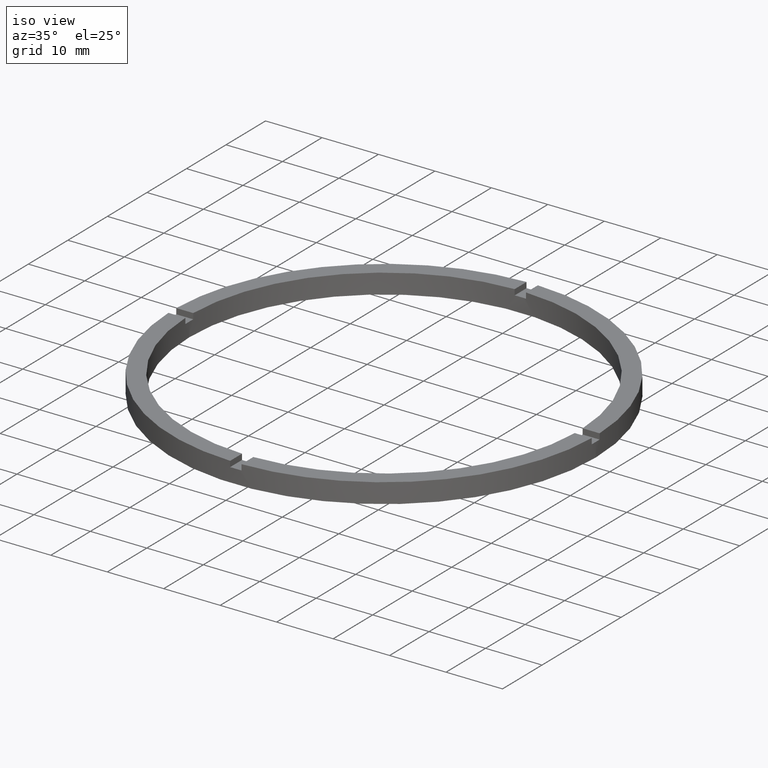
[diagram: clean part render]
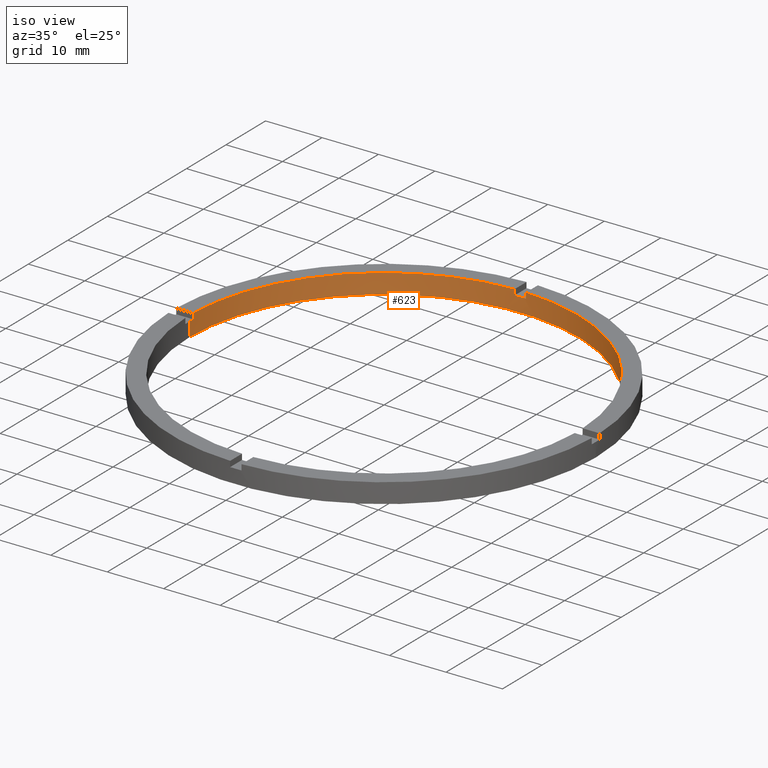
[diagram: same view with one face highlighted and labeled with its STEP entity id]
A machine part, iso view. The second image highlights one B-rep face of the part: STEP entity #623.
In plain terms, the highlighted cylindrical surface (partial cylindrical patch) has radius 34.5 mm, axis along (-0, -0, -1).
Its self-contained STEP definition (entity closure, byte-faithful):
#7 = VECTOR ( 'NONE', #56, 1000.000000000000000 ) ;
#21 = CARTESIAN_POINT ( 'NONE',  ( 0.000000000000000000, 0.000000000000000000, 2.500000000000000000 ) ) ;
#24 = LINE ( 'NONE', #560, #548 ) ;
#28 = LINE ( 'NONE', #554, #290 ) ;
#32 = LINE ( 'NONE', #321, #7 ) ;
#33 = CARTESIAN_POINT ( 'NONE',  ( -1.000000000000025313, 34.48550420104075442, 3.500000000000000000 ) ) ;
#37 = CARTESIAN_POINT ( 'NONE',  ( 34.48550420104076153, 0.9999999999998423483, 3.500000000000000000 ) ) ;
#56 = DIRECTION ( 'NONE',  ( 0.000000000000000000, 0.000000000000000000, 1.000000000000000000 ) ) ;
#59 = EDGE_CURVE ( 'NONE', #231, #748, #656, .T. ) ;
#61 = VECTOR ( 'NONE', #683, 1000.000000000000000 ) ;
#63 = CYLINDRICAL_SURFACE ( 'NONE', #310, 34.49999999999999289 ) ;
#68 = LINE ( 'NONE', #154, #61 ) ;
#69 = EDGE_CURVE ( 'NONE', #370, #212, #160, .T. ) ;
#70 = CARTESIAN_POINT ( 'NONE',  ( -34.48550420104076153, 0.9999999999999731326, 2.500000000000000000 ) ) ;
#79 = VECTOR ( 'NONE', #96, 1000.000000000000000 ) ;
#96 = DIRECTION ( 'NONE',  ( -0.000000000000000000, -0.000000000000000000, -1.000000000000000000 ) ) ;
#110 = CARTESIAN_POINT ( 'NONE',  ( 0.000000000000000000, 0.000000000000000000, 3.500000000000000000 ) ) ;
#124 = ORIENTED_EDGE ( 'NONE', *, *, #191, .T. ) ;
#142 = ORIENTED_EDGE ( 'NONE', *, *, #732, .F. ) ;
#145 = CIRCLE ( 'NONE', #530, 34.49999999999999289 ) ;
#154 = CARTESIAN_POINT ( 'NONE',  ( 34.49999999999999289, 4.225031457058367344E-15, 3.500000000000000000 ) ) ;
#155 = EDGE_CURVE ( 'NONE', #665, #361, #145, .T. ) ;
#160 = LINE ( 'NONE', #617, #675 ) ;
#179 = DIRECTION ( 'NONE',  ( 0.000000000000000000, 0.000000000000000000, 1.000000000000000000 ) ) ;
#183 = VERTEX_POINT ( 'NONE', #481 ) ;
#188 = DIRECTION ( 'NONE',  ( 0.000000000000000000, 0.000000000000000000, 1.000000000000000000 ) ) ;
#191 = EDGE_CURVE ( 'NONE', #480, #183, #695, .T. ) ;
#200 = ORIENTED_EDGE ( 'NONE', *, *, #607, .F. ) ;
#204 = CARTESIAN_POINT ( 'NONE',  ( -1.000000000000025313, 34.48550420104075442, 2.500000000000000000 ) ) ;
#212 = VERTEX_POINT ( 'NONE', #495 ) ;
#220 = ORIENTED_EDGE ( 'NONE', *, *, #507, .T. ) ;
#222 = CARTESIAN_POINT ( 'NONE',  ( 0.000000000000000000, 0.000000000000000000, 2.500000000000000000 ) ) ;
#231 = VERTEX_POINT ( 'NONE', #586 ) ;
#237 = VERTEX_POINT ( 'NONE', #259 ) ;
#238 = CARTESIAN_POINT ( 'NONE',  ( 0.9999999999999746869, 34.48550420104076153, 3.500000000000000000 ) ) ;
#249 = CARTESIAN_POINT ( 'NONE',  ( 0.000000000000000000, 0.000000000000000000, 3.500000000000000000 ) ) ;
#251 = DIRECTION ( 'NONE',  ( 0.000000000000000000, -0.000000000000000000, 1.000000000000000000 ) ) ;
#259 = CARTESIAN_POINT ( 'NONE',  ( 0.9999999999999746869, 34.48550420104076153, 2.500000000000000000 ) ) ;
#260 = EDGE_CURVE ( 'NONE', #370, #467, #432, .T. ) ;
#266 = DIRECTION ( 'NONE',  ( -0.000000000000000000, -0.000000000000000000, -1.000000000000000000 ) ) ;
#290 = VECTOR ( 'NONE', #749, 1000.000000000000000 ) ;
#300 = CIRCLE ( 'NONE', #446, 34.49999999999999289 ) ;
#305 = DIRECTION ( 'NONE',  ( 0.000000000000000000, 0.000000000000000000, 1.000000000000000000 ) ) ;
#310 = AXIS2_PLACEMENT_3D ( 'NONE', #759, #317, #441 ) ;
#317 = DIRECTION ( 'NONE',  ( -0.000000000000000000, -0.000000000000000000, -1.000000000000000000 ) ) ;
#321 = CARTESIAN_POINT ( 'NONE',  ( -34.48550420104076153, 0.9999999999999731326, 3.500000000000000000 ) ) ;
#328 = FACE_OUTER_BOUND ( 'NONE', #743, .T. ) ;
#329 = CARTESIAN_POINT ( 'NONE',  ( -34.49999999999999289, 0.000000000000000000, 0.000000000000000000 ) ) ;
#339 = AXIS2_PLACEMENT_3D ( 'NONE', #21, #251, #394 ) ;
#351 = DIRECTION ( 'NONE',  ( 1.000000000000000000, 0.000000000000000000, 0.000000000000000000 ) ) ;
#355 = EDGE_CURVE ( 'NONE', #237, #467, #24, .T. ) ;
#359 = DIRECTION ( 'NONE',  ( 1.000000000000000000, 0.000000000000000000, 0.000000000000000000 ) ) ;
#361 = VERTEX_POINT ( 'NONE', #709 ) ;
#369 = DIRECTION ( 'NONE',  ( 1.000000000000000000, 0.000000000000000000, 0.000000000000000000 ) ) ;
#370 = VERTEX_POINT ( 'NONE', #37 ) ;
#381 = ORIENTED_EDGE ( 'NONE', *, *, #427, .T. ) ;
#386 = ORIENTED_EDGE ( 'NONE', *, *, #666, .F. ) ;
#394 = DIRECTION ( 'NONE',  ( 1.000000000000000000, 0.000000000000000000, 0.000000000000000000 ) ) ;
#420 = ORIENTED_EDGE ( 'NONE', *, *, #260, .T. ) ;
#427 = EDGE_CURVE ( 'NONE', #687, #212, #300, .T. ) ;
#432 = CIRCLE ( 'NONE', #449, 34.49999999999999289 ) ;
#441 = DIRECTION ( 'NONE',  ( -1.000000000000000000, 0.000000000000000000, 0.000000000000000000 ) ) ;
#446 = AXIS2_PLACEMENT_3D ( 'NONE', #222, #188, #758 ) ;
#449 = AXIS2_PLACEMENT_3D ( 'NONE', #249, #305, #359 ) ;
#461 = ORIENTED_EDGE ( 'NONE', *, *, #69, .F. ) ;
#467 = VERTEX_POINT ( 'NONE', #238 ) ;
#480 = VERTEX_POINT ( 'NONE', #689 ) ;
#481 = CARTESIAN_POINT ( 'NONE',  ( -34.48550420104076153, 0.9999999999999731326, 3.500000000000000000 ) ) ;
#495 = CARTESIAN_POINT ( 'NONE',  ( 34.48550420104076153, 0.9999999999998423483, 2.500000000000000000 ) ) ;
#501 = CARTESIAN_POINT ( 'NONE',  ( 34.49999999999999289, 4.225031457058367344E-15, 2.500000000000000000 ) ) ;
#507 = EDGE_CURVE ( 'NONE', #361, #748, #28, .T. ) ;
#530 = AXIS2_PLACEMENT_3D ( 'NONE', #780, #651, #369 ) ;
#548 = VECTOR ( 'NONE', #638, 1000.000000000000000 ) ;
#554 = CARTESIAN_POINT ( 'NONE',  ( -34.49999999999999289, 0.000000000000000000, 3.500000000000000000 ) ) ;
#560 = CARTESIAN_POINT ( 'NONE',  ( 0.9999999999999746869, 34.48550420104076153, 3.500000000000000000 ) ) ;
#572 = LINE ( 'NONE', #33, #79 ) ;
#577 = AXIS2_PLACEMENT_3D ( 'NONE', #686, #699, #760 ) ;
#580 = CIRCLE ( 'NONE', #339, 34.49999999999999289 ) ;
#586 = CARTESIAN_POINT ( 'NONE',  ( 34.49999999999999289, 4.225031457058367344E-15, 0.000000000000000000 ) ) ;
#607 = EDGE_CURVE ( 'NONE', #665, #183, #32, .T. ) ;
#617 = CARTESIAN_POINT ( 'NONE',  ( 34.48550420104076153, 0.9999999999998423483, 3.500000000000000000 ) ) ;
#623 = ADVANCED_FACE ( 'NONE', ( #328 ), #63, .F. ) ;
#635 = ORIENTED_EDGE ( 'NONE', *, *, #155, .T. ) ;
#637 = ORIENTED_EDGE ( 'NONE', *, *, #59, .F. ) ;
#638 = DIRECTION ( 'NONE',  ( 0.000000000000000000, 0.000000000000000000, 1.000000000000000000 ) ) ;
#643 = ORIENTED_EDGE ( 'NONE', *, *, #355, .F. ) ;
#651 = DIRECTION ( 'NONE',  ( 0.000000000000000000, 0.000000000000000000, 1.000000000000000000 ) ) ;
#653 = EDGE_CURVE ( 'NONE', #237, #664, #580, .T. ) ;
#656 = CIRCLE ( 'NONE', #577, 34.49999999999999289 ) ;
#664 = VERTEX_POINT ( 'NONE', #204 ) ;
#665 = VERTEX_POINT ( 'NONE', #70 ) ;
#666 = EDGE_CURVE ( 'NONE', #687, #231, #68, .T. ) ;
#675 = VECTOR ( 'NONE', #266, 1000.000000000000000 ) ;
#683 = DIRECTION ( 'NONE',  ( -0.000000000000000000, -0.000000000000000000, -1.000000000000000000 ) ) ;
#686 = CARTESIAN_POINT ( 'NONE',  ( 0.000000000000000000, 0.000000000000000000, 0.000000000000000000 ) ) ;
#687 = VERTEX_POINT ( 'NONE', #501 ) ;
#689 = CARTESIAN_POINT ( 'NONE',  ( -1.000000000000025313, 34.48550420104075442, 3.500000000000000000 ) ) ;
#695 = CIRCLE ( 'NONE', #737, 34.49999999999999289 ) ;
#699 = DIRECTION ( 'NONE',  ( 0.000000000000000000, 0.000000000000000000, 1.000000000000000000 ) ) ;
#709 = CARTESIAN_POINT ( 'NONE',  ( -34.49999999999999289, 0.000000000000000000, 2.500000000000000000 ) ) ;
#720 = ORIENTED_EDGE ( 'NONE', *, *, #653, .T. ) ;
#732 = EDGE_CURVE ( 'NONE', #480, #664, #572, .T. ) ;
#737 = AXIS2_PLACEMENT_3D ( 'NONE', #110, #179, #351 ) ;
#743 = EDGE_LOOP ( 'NONE', ( #386, #381, #461, #420, #643, #720, #142, #124, #200, #635, #220, #637 ) ) ;
#748 = VERTEX_POINT ( 'NONE', #329 ) ;
#749 = DIRECTION ( 'NONE',  ( -0.000000000000000000, -0.000000000000000000, -1.000000000000000000 ) ) ;
#758 = DIRECTION ( 'NONE',  ( 1.000000000000000000, 0.000000000000000000, 0.000000000000000000 ) ) ;
#759 = CARTESIAN_POINT ( 'NONE',  ( 0.000000000000000000, 0.000000000000000000, 3.500000000000000000 ) ) ;
#760 = DIRECTION ( 'NONE',  ( 1.000000000000000000, 0.000000000000000000, 0.000000000000000000 ) ) ;
#780 = CARTESIAN_POINT ( 'NONE',  ( 0.000000000000000000, 0.000000000000000000, 2.500000000000000000 ) ) ;